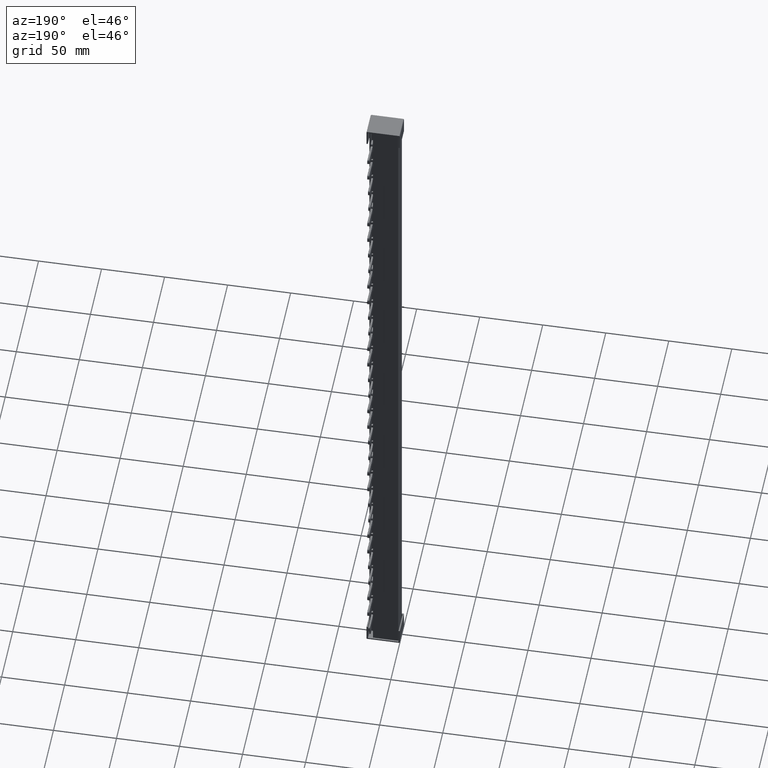
[diagram: clean part render]
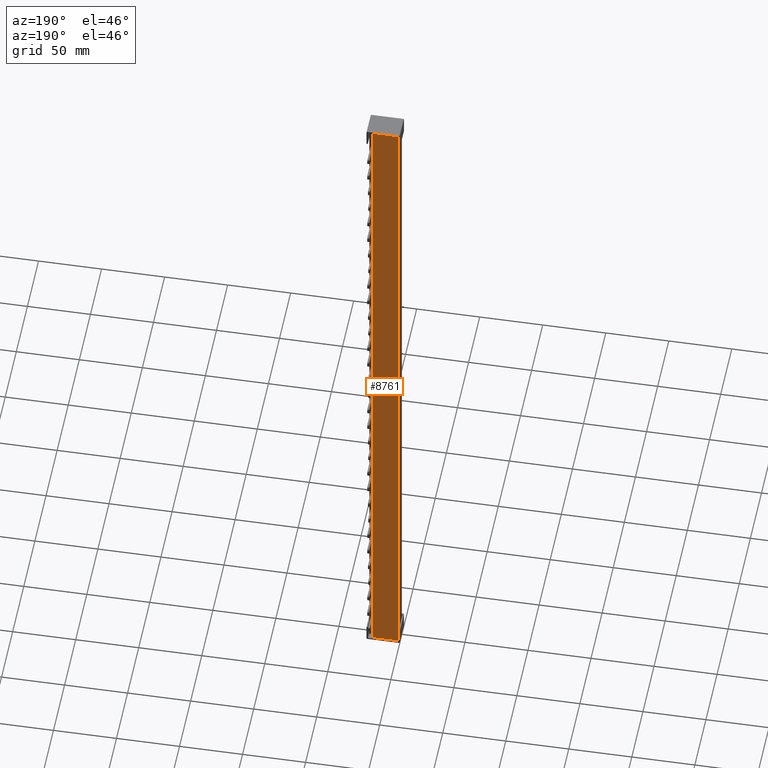
[diagram: same view with one face highlighted and labeled with its STEP entity id]
A machine part, auxiliary view. The second image highlights one B-rep face of the part: STEP entity #8761.
In plain terms, the highlighted planar face has unit normal (0, 1, 0).
Its self-contained STEP definition (entity closure, byte-faithful):
#3198 = VERTEX_POINT ( 'NONE', #17364 ) ;
#3221 = VERTEX_POINT ( 'NONE', #17333 ) ;
#3226 = VERTEX_POINT ( 'NONE', #17361 ) ;
#3227 = VERTEX_POINT ( 'NONE', #17366 ) ;
#3423 = ORIENTED_EDGE ( 'NONE', *, *, #9910, .T. ) ;
#3435 = ORIENTED_EDGE ( 'NONE', *, *, #9939, .T. ) ;
#3449 = ORIENTED_EDGE ( 'NONE', *, *, #9926, .T. ) ;
#3458 = ORIENTED_EDGE ( 'NONE', *, *, #9919, .T. ) ;
#3487 = ORIENTED_EDGE ( 'NONE', *, *, #9951, .T. ) ;
#3488 = ORIENTED_EDGE ( 'NONE', *, *, #9943, .T. ) ;
#3489 = ORIENTED_EDGE ( 'NONE', *, *, #9922, .T. ) ;
#3500 = ORIENTED_EDGE ( 'NONE', *, *, #9950, .T. ) ;
#3506 = ORIENTED_EDGE ( 'NONE', *, *, #9908, .T. ) ;
#3507 = ORIENTED_EDGE ( 'NONE', *, *, #9933, .T. ) ;
#3515 = ORIENTED_EDGE ( 'NONE', *, *, #9725, .T. ) ;
#3518 = ORIENTED_EDGE ( 'NONE', *, *, #9925, .T. ) ;
#3521 = ORIENTED_EDGE ( 'NONE', *, *, #9929, .T. ) ;
#3527 = ORIENTED_EDGE ( 'NONE', *, *, #9931, .T. ) ;
#3528 = ORIENTED_EDGE ( 'NONE', *, *, #9949, .T. ) ;
#3529 = ORIENTED_EDGE ( 'NONE', *, *, #9944, .T. ) ;
#3540 = ORIENTED_EDGE ( 'NONE', *, *, #9909, .T. ) ;
#3542 = ORIENTED_EDGE ( 'NONE', *, *, #9923, .T. ) ;
#3575 = ORIENTED_EDGE ( 'NONE', *, *, #9920, .T. ) ;
#3600 = ORIENTED_EDGE ( 'NONE', *, *, #9924, .T. ) ;
#4841 = AXIS2_PLACEMENT_3D ( 'NONE', #60836, #60847, #60837 ) ;
#6052 = EDGE_LOOP ( 'NONE', ( #3540, #3542, #3500, #3487, #3506, #3449, #3458, #3435, #3423, #3507, #3488, #3518, #3529, #3575, #3528, #3489, #3527, #3521, #3515, #3600 ) ) ;
#8761 = ADVANCED_FACE ( 'NONE', ( #60877 ), #60846, .T. ) ;
#9725 = EDGE_CURVE ( 'NONE', #12679, #12684, #32494, .T. ) ;
#9908 = EDGE_CURVE ( 'NONE', #3226, #12375, #56758, .T. ) ;
#9909 = EDGE_CURVE ( 'NONE', #53553, #21494, #56784, .T. ) ;
#9910 = EDGE_CURVE ( 'NONE', #21491, #53557, #56811, .T. ) ;
#9919 = EDGE_CURVE ( 'NONE', #53550, #3198, #56762, .T. ) ;
#9920 = EDGE_CURVE ( 'NONE', #12433, #3221, #56805, .T. ) ;
#9922 = EDGE_CURVE ( 'NONE', #53551, #38602, #56779, .T. ) ;
#9923 = EDGE_CURVE ( 'NONE', #21494, #21492, #56803, .T. ) ;
#9924 = EDGE_CURVE ( 'NONE', #12684, #53553, #56893, .T. ) ;
#9925 = EDGE_CURVE ( 'NONE', #21478, #3227, #56884, .T. ) ;
#9926 = EDGE_CURVE ( 'NONE', #12375, #53550, #56871, .T. ) ;
#9929 = EDGE_CURVE ( 'NONE', #53549, #12679, #56831, .T. ) ;
#9931 = EDGE_CURVE ( 'NONE', #38602, #53549, #33049, .T. ) ;
#9933 = EDGE_CURVE ( 'NONE', #53557, #12508, #56886, .T. ) ;
#9939 = EDGE_CURVE ( 'NONE', #3198, #21491, #56976, .T. ) ;
#9943 = EDGE_CURVE ( 'NONE', #12508, #21478, #57003, .T. ) ;
#9944 = EDGE_CURVE ( 'NONE', #3227, #12433, #56949, .T. ) ;
#9949 = EDGE_CURVE ( 'NONE', #3221, #53551, #56889, .T. ) ;
#9950 = EDGE_CURVE ( 'NONE', #21492, #53559, #56921, .T. ) ;
#9951 = EDGE_CURVE ( 'NONE', #53559, #3226, #56922, .T. ) ;
#12375 = VERTEX_POINT ( 'NONE', #42258 ) ;
#12433 = VERTEX_POINT ( 'NONE', #41511 ) ;
#12508 = VERTEX_POINT ( 'NONE', #38762 ) ;
#12679 = VERTEX_POINT ( 'NONE', #38966 ) ;
#12684 = VERTEX_POINT ( 'NONE', #38921 ) ;
#17333 = CARTESIAN_POINT ( 'NONE',  ( 19.99999999999993600, 16.50000000000001400, -192.1450000000036200 ) ) ;
#17361 = CARTESIAN_POINT ( 'NONE',  ( 20.00000000000001800, 16.50000000000001400, 158.3549999999963500 ) ) ;
#17364 = CARTESIAN_POINT ( 'NONE',  ( 19.99999999999996100, 16.50000000000001400, 22.65499999999631700 ) ) ;
#17366 = CARTESIAN_POINT ( 'NONE',  ( 19.99999999999993600, 16.50000000000001400, -122.0450000000036300 ) ) ;
#21478 = VERTEX_POINT ( 'NONE', #31604 ) ;
#21491 = VERTEX_POINT ( 'NONE', #31627 ) ;
#21492 = VERTEX_POINT ( 'NONE', #31686 ) ;
#21494 = VERTEX_POINT ( 'NONE', #31630 ) ;
#23479 = CARTESIAN_POINT ( 'NONE',  ( 19.99999999999993600, 16.50000000000001400, -47.44500000000362400 ) ) ;
#23507 = CARTESIAN_POINT ( 'NONE',  ( 19.99999999999990800, 16.50000000000001400, -263.9999999999984700 ) ) ;
#23519 = CARTESIAN_POINT ( 'NONE',  ( 19.99999999999990800, 16.50000000000001400, 303.9999999999968200 ) ) ;
#23524 = CARTESIAN_POINT ( 'NONE',  ( 0.0000000000000000000, 16.50000000000001400, -263.9974937185326700 ) ) ;
#23532 = CARTESIAN_POINT ( 'NONE',  ( 19.99999999999998900, 16.50000000000001400, 88.25499999999635700 ) ) ;
#23533 = CARTESIAN_POINT ( 'NONE',  ( 19.99999999999998900, 16.50000000000001400, 162.8549999999963800 ) ) ;
#30059 = CARTESIAN_POINT ( 'NONE',  ( 0.05000000020467278200, 16.50000000000001800, -264.0000000000000000 ) ) ;
#31604 = CARTESIAN_POINT ( 'NONE',  ( 19.99999999999993600, 16.50000000000001400, -117.5450000000036700 ) ) ;
#31627 = CARTESIAN_POINT ( 'NONE',  ( 19.99999999999993600, 16.50000000000001400, 18.15499999999637000 ) ) ;
#31630 = CARTESIAN_POINT ( 'NONE',  ( 19.99999999999996100, 16.50000000000001400, 232.9549999999963200 ) ) ;
#31686 = CARTESIAN_POINT ( 'NONE',  ( 20.00000000000001800, 16.50000000000001400, 228.4549999999963700 ) ) ;
#32494 = CIRCLE ( 'NONE', #32498, 0.5000000000000004400 ) ;
#32498 = AXIS2_PLACEMENT_3D ( 'NONE', #51642, #51646, #51562 ) ;
#32974 = VECTOR ( 'NONE', #56908, 1000.000000000000000 ) ;
#32995 = VECTOR ( 'NONE', #56877, 1000.000000000000000 ) ;
#32997 = VECTOR ( 'NONE', #56792, 1000.000000000000000 ) ;
#33008 = VECTOR ( 'NONE', #56799, 1000.000000000000000 ) ;
#33011 = VECTOR ( 'NONE', #56761, 1000.000000000000000 ) ;
#33032 = VECTOR ( 'NONE', #56819, 1000.000000000000000 ) ;
#33034 = VECTOR ( 'NONE', #56865, 1000.000000000000000 ) ;
#33038 = VECTOR ( 'NONE', #56905, 1000.000000000000000 ) ;
#33042 = VECTOR ( 'NONE', #56807, 1000.000000000000000 ) ;
#33047 = VECTOR ( 'NONE', #56768, 1000.000000000000000 ) ;
#33049 = CIRCLE ( 'NONE', #33105, 0.5000000000000004400 ) ;
#33065 = VECTOR ( 'NONE', #56856, 1000.000000000000000 ) ;
#33089 = VECTOR ( 'NONE', #56998, 1000.000000000000000 ) ;
#33096 = VECTOR ( 'NONE', #56986, 1000.000000000000000 ) ;
#33105 = AXIS2_PLACEMENT_3D ( 'NONE', #56829, #56873, #56880 ) ;
#33108 = VECTOR ( 'NONE', #56848, 1000.000000000000000 ) ;
#33112 = VECTOR ( 'NONE', #56923, 1000.000000000000000 ) ;
#33121 = VECTOR ( 'NONE', #56937, 1000.000000000000000 ) ;
#33123 = VECTOR ( 'NONE', #56985, 1000.000000000000000 ) ;
#33186 = VECTOR ( 'NONE', #56997, 1000.000000000000000 ) ;
#38602 = VERTEX_POINT ( 'NONE', #30059 ) ;
#38762 = CARTESIAN_POINT ( 'NONE',  ( 19.99999999999993600, 16.50000000000001400, -51.94500000000362400 ) ) ;
#38921 = CARTESIAN_POINT ( 'NONE',  ( 0.05000000020459299800, 16.50000000000001400, 303.9999999999999400 ) ) ;
#38966 = CARTESIAN_POINT ( 'NONE',  ( 0.0000000000000000000, 16.50000000000001400, 303.9974937185326700 ) ) ;
#41511 = CARTESIAN_POINT ( 'NONE',  ( 19.99999999999993600, 16.50000000000001400, -187.6450000000036200 ) ) ;
#42258 = CARTESIAN_POINT ( 'NONE',  ( 19.99999999999996100, 16.50000000000001400, 92.75499999999637200 ) ) ;
#51562 = DIRECTION ( 'NONE',  ( 0.0000000000000000000, 0.0000000000000000000, 1.000000000000000000 ) ) ;
#51642 = CARTESIAN_POINT ( 'NONE',  ( 0.05000000020459298400, 16.50000000000001800, 303.4999999999999400 ) ) ;
#51646 = DIRECTION ( 'NONE',  ( 0.0000000000000000000, 1.000000000000000000, 0.0000000000000000000 ) ) ;
#53549 = VERTEX_POINT ( 'NONE', #23524 ) ;
#53550 = VERTEX_POINT ( 'NONE', #23532 ) ;
#53551 = VERTEX_POINT ( 'NONE', #23507 ) ;
#53553 = VERTEX_POINT ( 'NONE', #23519 ) ;
#53557 = VERTEX_POINT ( 'NONE', #23479 ) ;
#53559 = VERTEX_POINT ( 'NONE', #23533 ) ;
#56739 = CARTESIAN_POINT ( 'NONE',  ( 20.00000000000001800, 16.50000000000001400, 306.0000000000000000 ) ) ;
#56745 = CARTESIAN_POINT ( 'NONE',  ( 19.99999999999990800, 16.50000000000001400, 304.0000000000000000 ) ) ;
#56758 = LINE ( 'NONE', #56739, #33047 ) ;
#56761 = DIRECTION ( 'NONE',  ( -0.0000000000000000000, 0.0000000000000000000, -1.000000000000000000 ) ) ;
#56762 = LINE ( 'NONE', #56802, #33042 ) ;
#56768 = DIRECTION ( 'NONE',  ( -0.0000000000000000000, 0.0000000000000000000, -1.000000000000000000 ) ) ;
#56771 = CARTESIAN_POINT ( 'NONE',  ( 19.99999999999990800, 16.50000000000001400, 306.0000000000000000 ) ) ;
#56779 = LINE ( 'NONE', #56780, #32997 ) ;
#56780 = CARTESIAN_POINT ( 'NONE',  ( 11.74999999999998400, 16.50000000000001400, -264.0000000000000600 ) ) ;
#56784 = LINE ( 'NONE', #56745, #33011 ) ;
#56792 = DIRECTION ( 'NONE',  ( -1.000000000000000000, -0.0000000000000000000, 0.0000000000000000000 ) ) ;
#56799 = DIRECTION ( 'NONE',  ( -0.0000000000000000000, 0.0000000000000000000, -1.000000000000000000 ) ) ;
#56802 = CARTESIAN_POINT ( 'NONE',  ( 20.00000000000001800, 16.50000000000001400, 306.0000000000000000 ) ) ;
#56803 = LINE ( 'NONE', #56898, #33034 ) ;
#56805 = LINE ( 'NONE', #56771, #33032 ) ;
#56807 = DIRECTION ( 'NONE',  ( -0.0000000000000000000, 0.0000000000000000000, -1.000000000000000000 ) ) ;
#56811 = LINE ( 'NONE', #56827, #33008 ) ;
#56819 = DIRECTION ( 'NONE',  ( -0.0000000000000000000, 0.0000000000000000000, -1.000000000000000000 ) ) ;
#56827 = CARTESIAN_POINT ( 'NONE',  ( 19.99999999999990800, 16.50000000000001400, 306.0000000000000000 ) ) ;
#56829 = CARTESIAN_POINT ( 'NONE',  ( 0.05000000020459298400, 16.50000000000001800, -263.4999999999998900 ) ) ;
#56831 = LINE ( 'NONE', #56833, #32995 ) ;
#56833 = CARTESIAN_POINT ( 'NONE',  ( 0.0000000000000000000, 16.50000000000001400, 304.0000000000000000 ) ) ;
#56847 = CARTESIAN_POINT ( 'NONE',  ( 19.99999999999990800, 16.50000000000001400, 306.0000000000000000 ) ) ;
#56848 = DIRECTION ( 'NONE',  ( -0.0000000000000000000, 0.0000000000000000000, -1.000000000000000000 ) ) ;
#56852 = CARTESIAN_POINT ( 'NONE',  ( 19.99999999999990800, 16.50000000000001400, 306.0000000000000000 ) ) ;
#56855 = CARTESIAN_POINT ( 'NONE',  ( 11.74999999999998400, 16.50000000000001400, 304.0000000000000000 ) ) ;
#56856 = DIRECTION ( 'NONE',  ( -0.0000000000000000000, 0.0000000000000000000, -1.000000000000000000 ) ) ;
#56865 = DIRECTION ( 'NONE',  ( -0.0000000000000000000, 0.0000000000000000000, -1.000000000000000000 ) ) ;
#56869 = CARTESIAN_POINT ( 'NONE',  ( 19.99999999999990800, 16.50000000000001400, 306.0000000000000000 ) ) ;
#56871 = LINE ( 'NONE', #56847, #33065 ) ;
#56873 = DIRECTION ( 'NONE',  ( 0.0000000000000000000, 1.000000000000000000, 0.0000000000000000000 ) ) ;
#56877 = DIRECTION ( 'NONE',  ( 0.0000000000000000000, -0.0000000000000000000, 1.000000000000000000 ) ) ;
#56880 = DIRECTION ( 'NONE',  ( 0.0000000000000000000, 0.0000000000000000000, 1.000000000000000000 ) ) ;
#56884 = LINE ( 'NONE', #56869, #32974 ) ;
#56886 = LINE ( 'NONE', #56852, #33108 ) ;
#56889 = LINE ( 'NONE', #56968, #33121 ) ;
#56893 = LINE ( 'NONE', #56855, #33038 ) ;
#56898 = CARTESIAN_POINT ( 'NONE',  ( 20.00000000000001800, 16.50000000000001400, 306.0000000000000000 ) ) ;
#56905 = DIRECTION ( 'NONE',  ( 1.000000000000000000, 0.0000000000000000000, -0.0000000000000000000 ) ) ;
#56908 = DIRECTION ( 'NONE',  ( -0.0000000000000000000, 0.0000000000000000000, -1.000000000000000000 ) ) ;
#56921 = LINE ( 'NONE', #56982, #33089 ) ;
#56922 = LINE ( 'NONE', #56944, #33112 ) ;
#56923 = DIRECTION ( 'NONE',  ( -0.0000000000000000000, 0.0000000000000000000, -1.000000000000000000 ) ) ;
#56932 = CARTESIAN_POINT ( 'NONE',  ( 19.99999999999990800, 16.50000000000001400, 306.0000000000000000 ) ) ;
#56937 = DIRECTION ( 'NONE',  ( -0.0000000000000000000, 0.0000000000000000000, -1.000000000000000000 ) ) ;
#56944 = CARTESIAN_POINT ( 'NONE',  ( 20.00000000000001800, 16.50000000000001400, 306.0000000000000000 ) ) ;
#56949 = LINE ( 'NONE', #56992, #33096 ) ;
#56961 = CARTESIAN_POINT ( 'NONE',  ( 19.99999999999990800, 16.50000000000001400, 306.0000000000000000 ) ) ;
#56968 = CARTESIAN_POINT ( 'NONE',  ( 19.99999999999990800, 16.50000000000001400, 306.0000000000000000 ) ) ;
#56976 = LINE ( 'NONE', #56961, #33186 ) ;
#56982 = CARTESIAN_POINT ( 'NONE',  ( 20.00000000000001800, 16.50000000000001400, 306.0000000000000000 ) ) ;
#56985 = DIRECTION ( 'NONE',  ( -0.0000000000000000000, 0.0000000000000000000, -1.000000000000000000 ) ) ;
#56986 = DIRECTION ( 'NONE',  ( -0.0000000000000000000, 0.0000000000000000000, -1.000000000000000000 ) ) ;
#56992 = CARTESIAN_POINT ( 'NONE',  ( 19.99999999999990800, 16.50000000000001400, 306.0000000000000000 ) ) ;
#56997 = DIRECTION ( 'NONE',  ( -0.0000000000000000000, 0.0000000000000000000, -1.000000000000000000 ) ) ;
#56998 = DIRECTION ( 'NONE',  ( -0.0000000000000000000, 0.0000000000000000000, -1.000000000000000000 ) ) ;
#57003 = LINE ( 'NONE', #56932, #33123 ) ;
#60836 = CARTESIAN_POINT ( 'NONE',  ( 11.74999999999998400, 16.50000000000001400, 304.0000000000000000 ) ) ;
#60837 = DIRECTION ( 'NONE',  ( 0.0000000000000000000, -0.0000000000000000000, 1.000000000000000000 ) ) ;
#60846 = PLANE ( 'NONE',  #4841 ) ;
#60847 = DIRECTION ( 'NONE',  ( 0.0000000000000000000, 1.000000000000000000, 0.0000000000000000000 ) ) ;
#60877 = FACE_OUTER_BOUND ( 'NONE', #6052, .T. ) ;